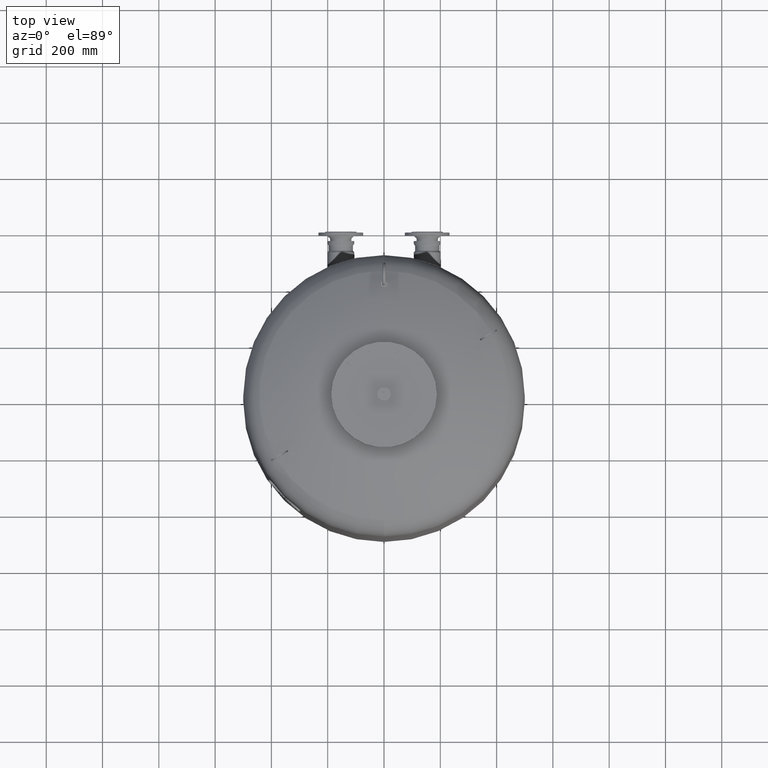
[diagram: clean part render]
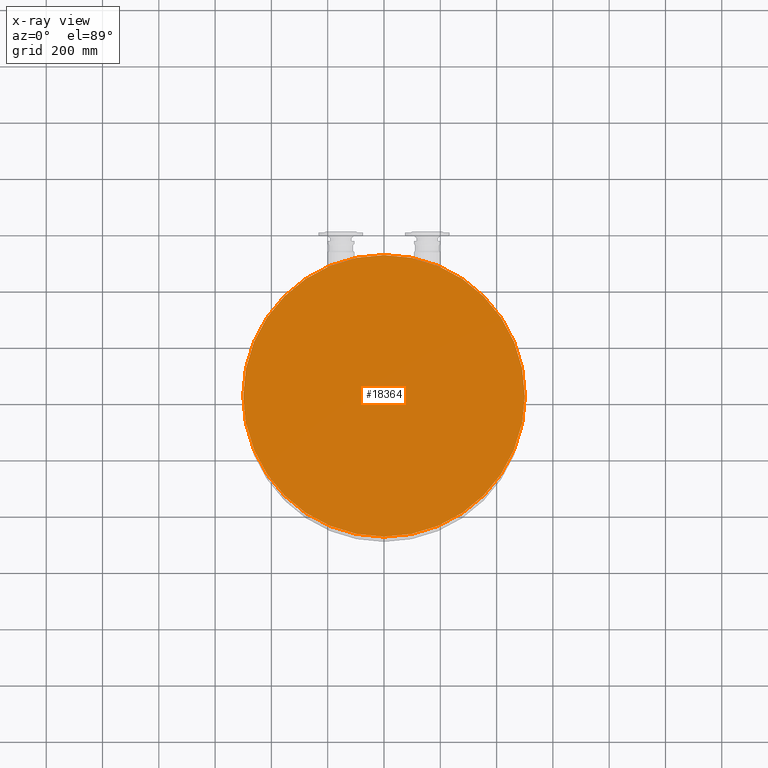
[diagram: x-ray — body ghosted, one internal face saturated and labeled with its STEP entity id]
A machine part, top view, then the same camera in x-ray: the body is ghosted and one INTERNAL B-rep face — a face not visible from any outside direction — is saturated and labeled: STEP entity #18364.
In plain terms, the highlighted planar face has unit normal (0, 0, 1).
Its self-contained STEP definition (entity closure, byte-faithful):
#18154=CARTESIAN_POINT('',(500.0,0.0,1722.500000000000000));
#18155=VERTEX_POINT('',#18154);
#18164=CARTESIAN_POINT('',(-500.0,-6.123032E-014,1722.500000000000000));
#18165=VERTEX_POINT('',#18164);
#18166=CARTESIAN_POINT('',(1.668796E-014,0.0,1722.500000000000000));
#18167=DIRECTION('',(0.0,0.0,1.0));
#18168=DIRECTION('',(1.0,0.0,0.0));
#18169=AXIS2_PLACEMENT_3D('',#18166,#18167,#18168);
#18170=CIRCLE('',#18169,500.0);
#18171=EDGE_CURVE('',#18165,#18155,#18170,.T.);
#18345=CARTESIAN_POINT('',(1.668796E-014,0.0,1722.500000000000000));
#18346=DIRECTION('',(0.0,0.0,1.0));
#18347=DIRECTION('',(1.0,0.0,0.0));
#18348=AXIS2_PLACEMENT_3D('',#18345,#18346,#18347);
#18349=CIRCLE('',#18348,500.0);
#18350=EDGE_CURVE('',#18155,#18165,#18349,.T.);
#18355=CARTESIAN_POINT('',(250.0,0.0,1722.500000000000000));
#18356=DIRECTION('',(0.0,0.0,1.0));
#18357=DIRECTION('',(1.0,0.0,0.0));
#18358=AXIS2_PLACEMENT_3D('',#18355,#18356,#18357);
#18359=PLANE('',#18358);
#18360=ORIENTED_EDGE('',*,*,#18350,.T.);
#18361=ORIENTED_EDGE('',*,*,#18171,.T.);
#18362=EDGE_LOOP('',(#18360,#18361));
#18363=FACE_OUTER_BOUND('',#18362,.T.);
#18364=ADVANCED_FACE('',(#18363),#18359,.T.);